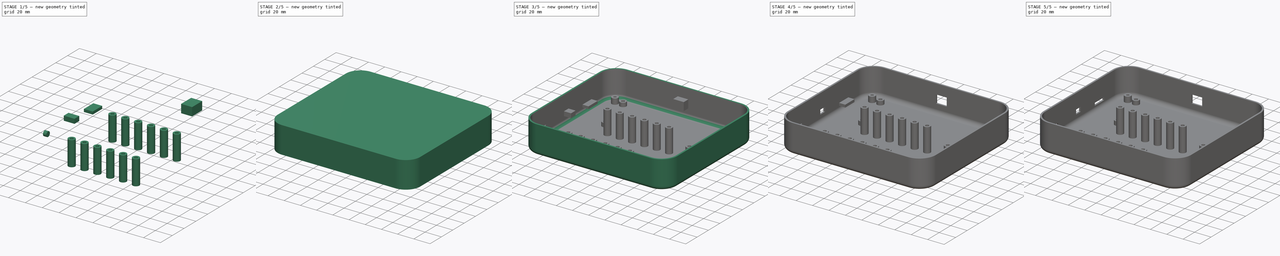
[diagram: build sequence overview — one tinted view per stage of 5, left to right]
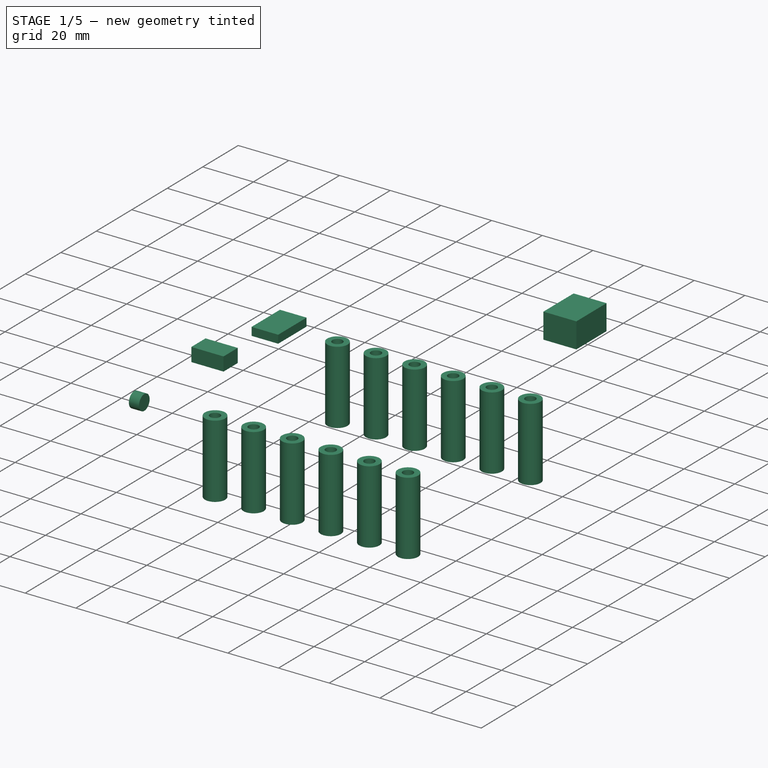
[diagram: stage 1 of 5 — iso view after this stage's code; geometry added in this stage tinted green]
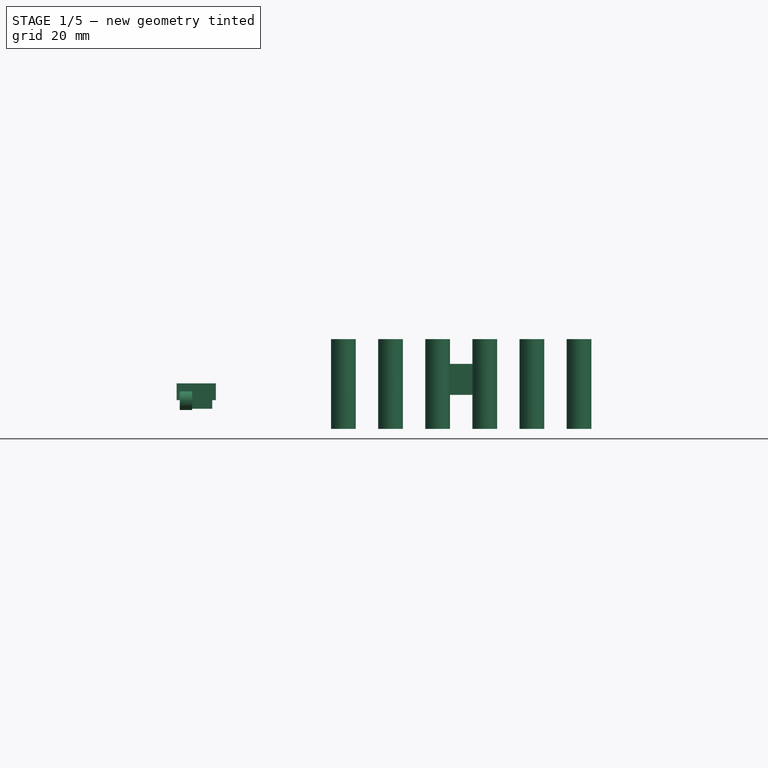
[diagram: stage 1 of 5 — front view after this stage's code; geometry added in this stage tinted green]
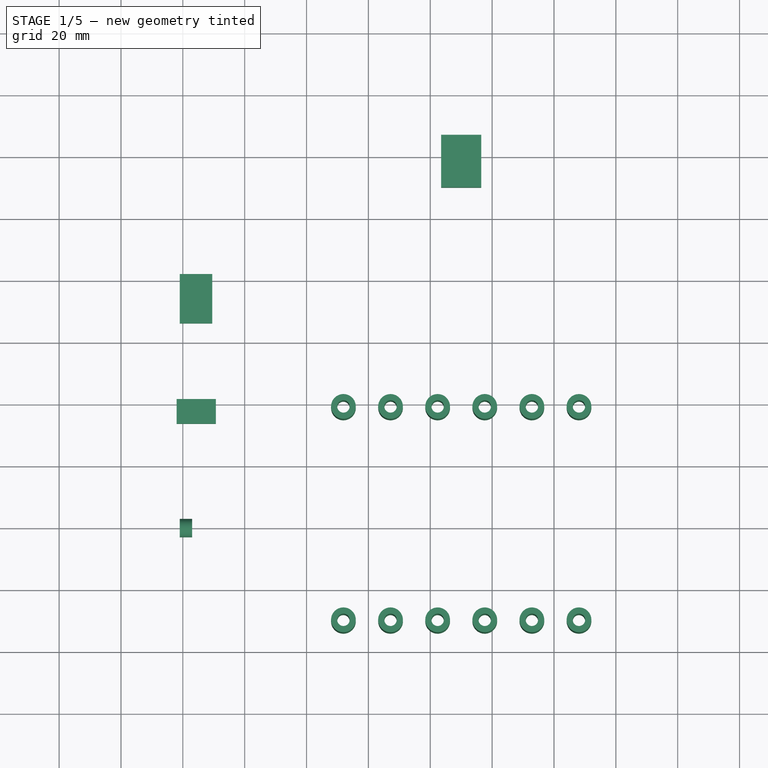
[diagram: stage 1 of 5 — top view after this stage's code; geometry added in this stage tinted green]
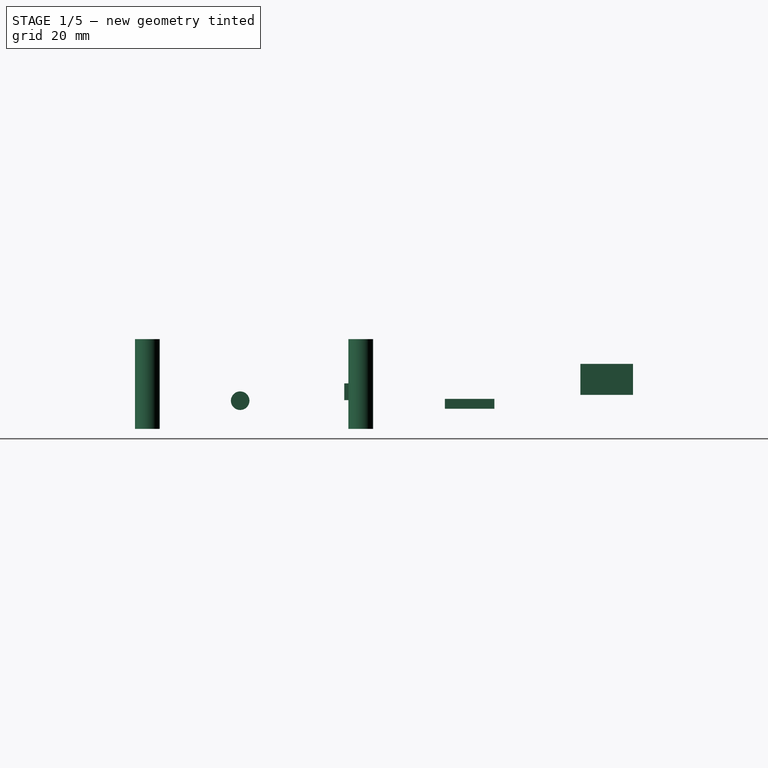
[diagram: stage 1 of 5 — right view after this stage's code; geometry added in this stage tinted green]
FCSTD DOCUMENT  (FreeCAD 0.16R6706 (Git))
Label: Case_Bottom_2.1
License: All rights reserved
LicenseURL: http://en.wikipedia.org/wiki/All_rights_reserved
objects: Sketcher::SketchObject×6, PartDesign::Pad×6, Part::Cut×6, PartDesign::Fillet×4, Part::Box×3, Part::Cylinder×2, PartDesign::Chamfer×1, Part::MultiFuse×1
note: 35 computed .brp shape members not serialized (recipe doc carries the construction recipe); baked Part::Feature solids carry a one-line shape summary decoded from their .brp

FEATURE [PartDesign::Pad] Pad004
  Length = 29
  Length2 = 100
  Placement = pos=(0,0,2) rot=(0,0,1;0rad)
  Sketch = -> Sketch004
  Type = 0
FEATURE [Part::Box] Box  label="USB"
  Height = 10
  Length = 13
  Placement = pos=(83.5,150,13) rot=(0,0,1;0rad)
  Width = 17
FEATURE [Part::Box] Box001  label="ON_OFF_SWITCH"
  Height = 5.4
  Length = 12.7
  Placement = pos=(-2,73.65,11.3) rot=(0,0,1;0rad)
  Width = 8
FEATURE [Part::Box] Box002  label="SD_Card"
  Height = 3.2
  Length = 10.5
  Placement = pos=(-1,106.17,8.5) rot=(0,0,1;0rad)
  Width = 16
FEATURE [Part::Cylinder] Cylinder001  label="AUDIOJACK"
  Angle = 360
  Height = 4
  Placement = pos=(-1,40,11.1) rot=(0,1,0;1.5708rad)
  Radius = 3
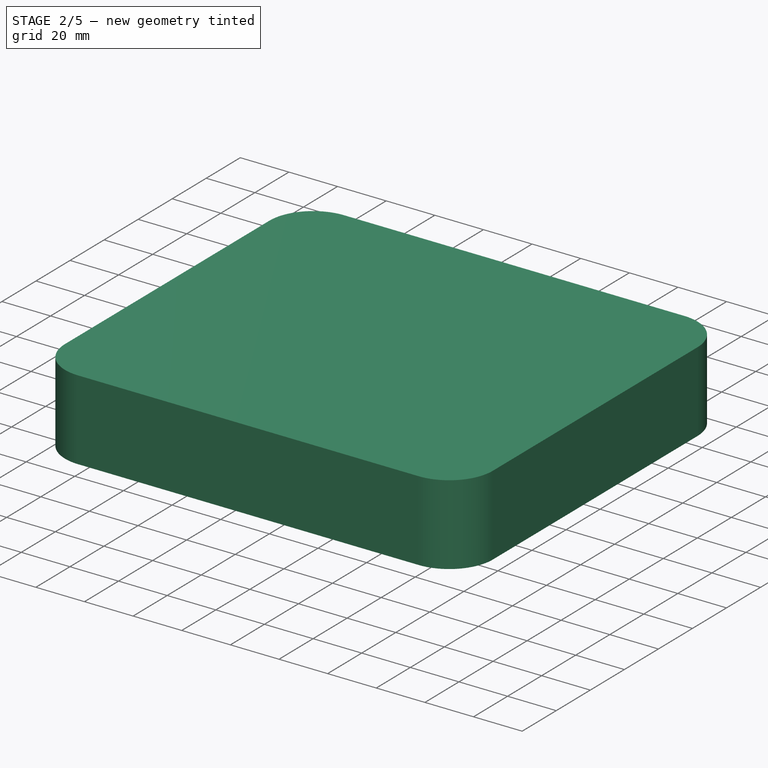
[diagram: stage 2 of 5 — iso view after this stage's code; geometry added in this stage tinted green]
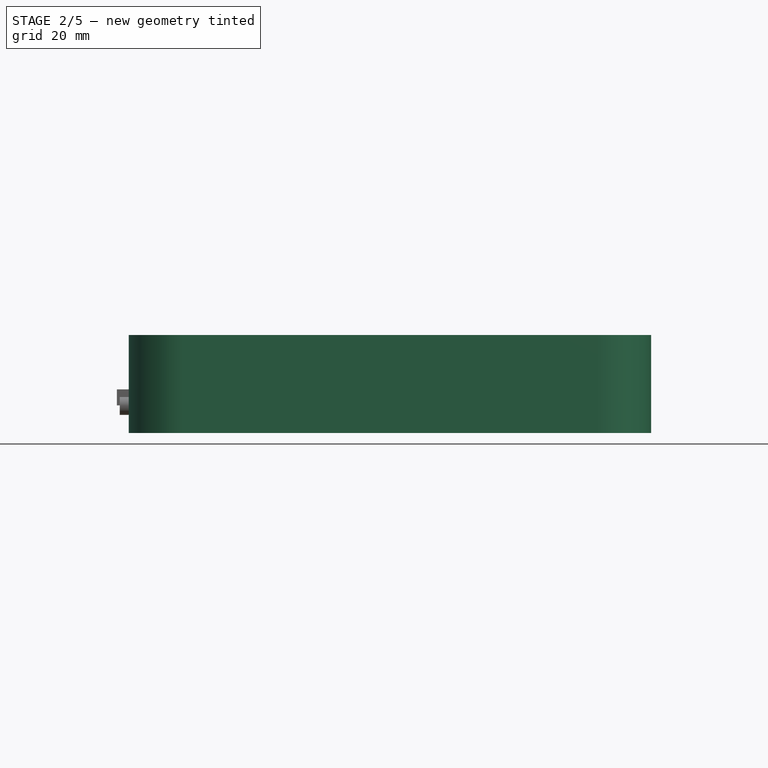
[diagram: stage 2 of 5 — front view after this stage's code; geometry added in this stage tinted green]
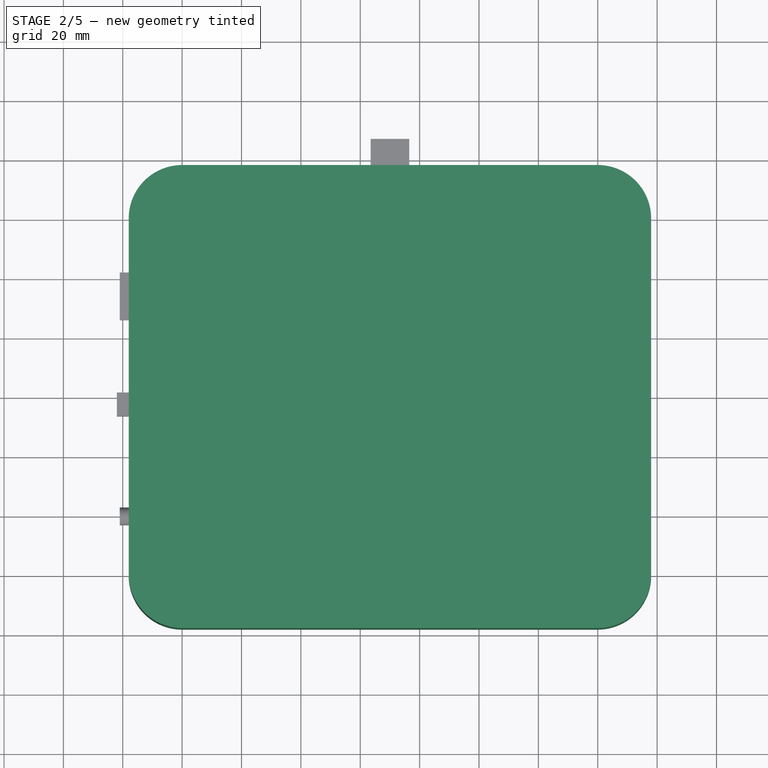
[diagram: stage 2 of 5 — top view after this stage's code; geometry added in this stage tinted green]
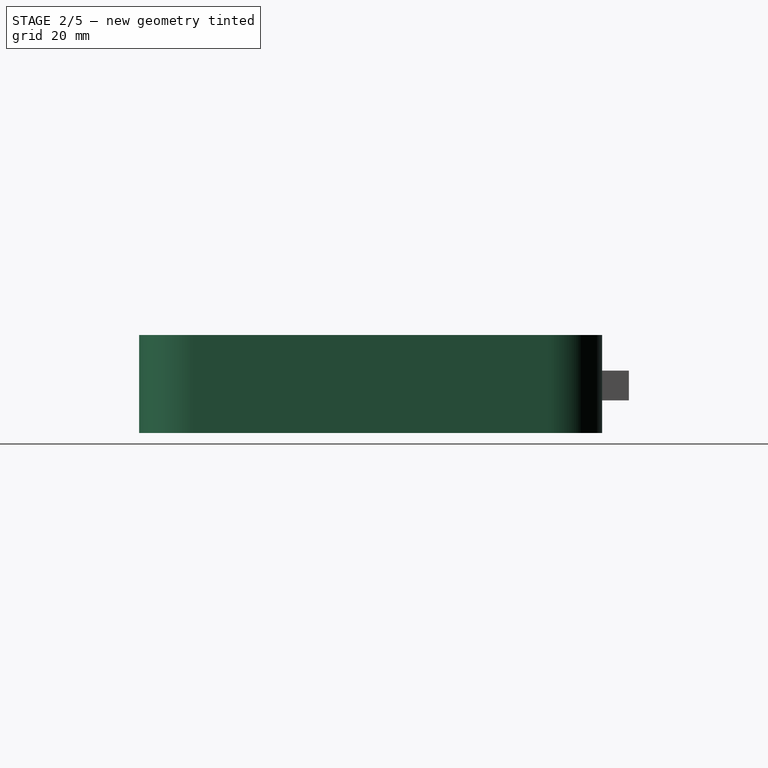
[diagram: stage 2 of 5 — right view after this stage's code; geometry added in this stage tinted green]
FEATURE [Sketcher::SketchObject] Sketch001
  Placement = pos=(0,0,2) rot=(0,0,1;0rad)
  sketch-geometry (4):
    g0: LineSegment StartX=2 StartY=2 StartZ=0 EndX=178 EndY=2 EndZ=0
    g1: LineSegment StartX=178 StartY=2 StartZ=0 EndX=178 EndY=158 EndZ=0
    g2: LineSegment StartX=178 StartY=158 StartZ=0 EndX=2 EndY=158 EndZ=0
    g3: LineSegment StartX=2 StartY=158 StartZ=0 EndX=2 EndY=2 EndZ=0
  constraints (12):
    c: Coincident(g0,g1)
    c: Coincident(g1,g2)
    c: Coincident(g2,g3)
    c: Coincident(g3,g0)
    c: Horizontal(g0)
    c: Horizontal(g2)
    c: Vertical(g1)
    c: Vertical(g3)
    c: DistanceX(g-1,g0) = 2
    c: DistanceY(g-1,g0) = 2
    c: DistanceX(g-1,g0) = 178
    c: DistanceY(g-1,g2) = 158
FEATURE [PartDesign::Pad] Pad001
  Length = 33
  Length2 = 100
  Placement = pos=(0,0,2) rot=(0,0,1;0rad)
  Sketch = -> Sketch001
  Type = 0
FEATURE [PartDesign::Fillet] Fillet002
  Base = -> Pad001 [Edge1,Edge8,Edge5,Edge2]
  Placement = pos=(0,0,2) rot=(0,0,1;0rad)
  Radius = 18
FEATURE [Sketcher::SketchObject] Sketch002
  Placement = pos=(0,0,2) rot=(0,0,1;0rad)
  sketch-geometry (8):
    g0: Circle CenterX=15 CenterY=15 CenterZ=0 NormalX=0 NormalY=0 NormalZ=1 Radius=4
    g1: Circle CenterX=15 CenterY=15 CenterZ=0 NormalX=0 NormalY=0 NormalZ=1 Radius=1.6
    g2: Circle CenterX=165 CenterY=15 CenterZ=0 NormalX=0 NormalY=0 NormalZ=1 Radius=4
    g3: Circle CenterX=165 CenterY=15 CenterZ=0 NormalX=0 NormalY=0 NormalZ=1 Radius=1.6
    g4: Circle CenterX=165 CenterY=145 CenterZ=0 NormalX=0 NormalY=0 NormalZ=1 Radius=4
    g5: Circle CenterX=165 CenterY=145 CenterZ=0 NormalX=0 NormalY=0 NormalZ=1 Radius=1.6
    g6: Circle CenterX=15 CenterY=145 CenterZ=0 NormalX=0 NormalY=0 NormalZ=1 Radius=4
    g7: Circle CenterX=15 CenterY=145 CenterZ=0 NormalX=0 NormalY=0 NormalZ=1 Radius=1.6
  constraints (20):
    c: Radius(g0) = 4
    c: DistanceX(g-1,g0) = 15
    c: DistanceY(g-1,g0) = 15
    c: Coincident(g1,g0)
    c: Radius(g1) = 1.6
    c: Radius(g2) = 4
    c: DistanceX(g-1,g2) = 165
    c: DistanceY(g-1,g2) = 15
    c: Coincident(g3,g2)
    c: Radius(g3) = 1.6
    c: Radius(g4) = 4
    c: DistanceX(g-1,g4) = 165
    c: DistanceY(g-1,g4) = 145
    c: Coincident(g5,g4)
    c: Radius(g5) = 1.6
    c: Radius(g6) = 4
    c: DistanceY(g-1,g6) = 145
    c: DistanceX(g-1,g6) = 15
    c: Coincident(g7,g6)
    c: Radius(g7) = 1.6
FEATURE [PartDesign::Pad] Pad002
  Length = 7
  Length2 = 100
  Placement = pos=(0,0,2) rot=(0,0,1;0rad)
  Sketch = -> Sketch002
  Type = 0
FEATURE [Sketcher::SketchObject] Sketch003
  Placement = pos=(0,0,2) rot=(0,0,1;0rad)
  sketch-geometry (12):
    g0: Circle CenterX=25 CenterY=145 CenterZ=0 NormalX=0 NormalY=0 NormalZ=1 Radius=4
    g1: Circle CenterX=25 CenterY=145 CenterZ=0 NormalX=0 NormalY=0 NormalZ=1 Radius=2
    g2: Circle CenterX=155 CenterY=145 CenterZ=0 NormalX=0 NormalY=0 NormalZ=1 Radius=4
    g3: Circle CenterX=155 CenterY=145 CenterZ=0 NormalX=0 NormalY=0 NormalZ=1 Radius=2
    g4: Circle CenterX=38 CenterY=95 CenterZ=0 NormalX=0 NormalY=0 NormalZ=1 Radius=4
    g5: Circle CenterX=142 CenterY=95 CenterZ=0 NormalX=0 NormalY=0 NormalZ=1 Radius=4
    g6: Circle CenterX=142 CenterY=95 CenterZ=0 NormalX=0 NormalY=0 NormalZ=1 Radius=2
    g7: Circle CenterX=38 CenterY=95 CenterZ=0 NormalX=0 NormalY=0 NormalZ=1 Radius=2
    g8: Circle CenterX=25 CenterY=15 CenterZ=0 NormalX=0 NormalY=0 NormalZ=1 Radius=4
    g9: Circle CenterX=155 CenterY=15 CenterZ=0 NormalX=0 NormalY=0 NormalZ=1 Radius=4
    g10: Circle CenterX=25 CenterY=15 CenterZ=0 NormalX=0 NormalY=0 NormalZ=1 Radius=2
    g11: Circle CenterX=155 CenterY=15 CenterZ=0 NormalX=0 NormalY=0 NormalZ=1 Radius=2
  constraints (30):
    c: DistanceX(g-1,g0) = 25
    c: DistanceY(g-1,g0) = 145
    c: Radius(g0) = 4
    c: Coincident(g1,g0)
    c: Radius(g1) = 2
    c: Radius(g2) = 4
    c: DistanceX(g-1,g2) = 155
    c: DistanceY(g-1,g2) = 145
    c: Coincident(g3,g2)
    c: Radius(g3) = 2
    c: Radius(g5) = 4
    c: Coincident(g6,g5)
    c: Radius(g6) = 2
    c: DistanceY(g5,g2) = 50
    c: Radius(g4) = 4
    c: Coincident(g7,g4)
    c: Radius(g7) = 2
    c: DistanceY(g4,g0) = 50
    c: DistanceX(g-1,g4) = 38
    c: DistanceX(g-1,g5) = 142
    c: Radius(g8) = 4
    c: DistanceX(g-1,g8) = 25
    c: DistanceY(g-1,g8) = 15
    c: Radius(g9) = 4
    c: DistanceY(g-1,g9) = 15
    c: DistanceX(g-1,g9) = 155
    c: Coincident(g10,g8)
    c: Radius(g10) = 2
    c: Coincident(g11,g9)
    c: Radius(g11) = 2
FEATURE [Sketcher::SketchObject] Sketch004
  Placement = pos=(0,0,2) rot=(0,0,1;0rad)
  sketch-geometry (24):
    g0: Circle CenterX=51.92 CenterY=10 CenterZ=0 NormalX=0 NormalY=0 NormalZ=1 Radius=4
    g1: Circle CenterX=67.152 CenterY=10 CenterZ=0 NormalX=0 NormalY=0 NormalZ=1 Radius=4
    g2: Circle CenterX=82.384 CenterY=10 CenterZ=0 NormalX=0 NormalY=0 NormalZ=1 Radius=4
    g3: Circle CenterX=97.616 CenterY=10 CenterZ=0 NormalX=0 NormalY=0 NormalZ=1 Radius=4
    g4: Circle CenterX=112.848 CenterY=10 CenterZ=0 NormalX=0 NormalY=0 NormalZ=1 Radius=4
    g5: Circle CenterX=128.08 CenterY=10 CenterZ=0 NormalX=0 NormalY=0 NormalZ=1 Radius=4
    g6: Circle CenterX=51.92 CenterY=10 CenterZ=0 NormalX=0 NormalY=0 NormalZ=1 Radius=2
    g7: Circle CenterX=67.152 CenterY=10 CenterZ=0 NormalX=0 NormalY=0 NormalZ=1 Radius=2
    g8: Circle CenterX=82.384 CenterY=10 CenterZ=0 NormalX=0 NormalY=0 NormalZ=1 Radius=2
    g9: Circle CenterX=97.616 CenterY=10 CenterZ=0 NormalX=0 NormalY=0 NormalZ=1 Radius=2
    g10: Circle CenterX=112.848 CenterY=10 CenterZ=0 NormalX=0 NormalY=0 NormalZ=1 Radius=2
    g11: Circle CenterX=128.08 CenterY=10 CenterZ=0 NormalX=0 NormalY=0 NormalZ=1 Radius=2
    g12: Circle CenterX=51.92 CenterY=79 CenterZ=0 NormalX=0 NormalY=0 NormalZ=1 Radius=4
    g13: Circle CenterX=67.152 CenterY=79 CenterZ=0 NormalX=0 NormalY=0 NormalZ=1 Radius=4
    g14: Circle CenterX=82.384 CenterY=79 CenterZ=0 NormalX=0 NormalY=0 NormalZ=1 Radius=4
    g15: Circle CenterX=97.616 CenterY=79 CenterZ=0 NormalX=0 NormalY=0 NormalZ=1 Radius=4
    g16: Circle CenterX=112.848 CenterY=79 CenterZ=0 NormalX=0 NormalY=0 NormalZ=1 Radius=4
    g17: Circle CenterX=128.08 CenterY=79 CenterZ=0 NormalX=0 NormalY=0 NormalZ=1 Radius=4
    g18: Circle CenterX=51.92 CenterY=79 CenterZ=0 NormalX=0 NormalY=0 NormalZ=1 Radius=2
    g19: Circle CenterX=67.152 CenterY=79 CenterZ=0 NormalX=0 NormalY=0 NormalZ=1 Radius=2
    g20: Circle CenterX=82.384 CenterY=79 CenterZ=0 NormalX=0 NormalY=0 NormalZ=1 Radius=2
    g21: Circle CenterX=97.616 CenterY=79 CenterZ=0 NormalX=0 NormalY=0 NormalZ=1 Radius=2
    g22: Circle CenterX=112.848 CenterY=79 CenterZ=0 NormalX=0 NormalY=0 NormalZ=1 Radius=2
    g23: Circle CenterX=128.08 CenterY=79 CenterZ=0 NormalX=0 NormalY=0 NormalZ=1 Radius=2
  constraints (60):
    c: Radius(g0) = 4
    c: DistanceX(g-1,g0) = 51.92
    c: DistanceX(g0,g1) = 15.232
    c: DistanceX(g1,g2) = 15.232
    c: DistanceX(g2,g3) = 15.232
    c: DistanceX(g3,g4) = 15.232
    c: DistanceX(g4,g5) = 15.232
    c: Radius(g1) = 4
    c: Radius(g2) = 4
    c: Radius(g3) = 4
    c: Radius(g4) = 4
    c: Radius(g5) = 4
    c: DistanceY(g1,g2) = 0
    c: DistanceY(g2,g3) = 0
    c: DistanceY(g4,g3) = 0
    c: DistanceY(g5,g4) = 0
    c: DistanceY(g0,g1) = 0
    c: Coincident(g6,g0)
    c: Coincident(g7,g1)
    c: Coincident(g8,g2)
    c: Coincident(g9,g3)
    c: Coincident(g10,g4)
    c: Coincident(g11,g5)
    c: Radius(g11) = 2
    c: Radius(g10) = 2
    c: Radius(g9) = 2
    c: Radius(g8) = 2
    c: Radius(g7) = 2
    c: Radius(g6) = 2
    c: Radius(g17) = 4
    c: Radius(g16) = 4
    c: Radius(g15) = 4
    c: Radius(g14) = 4
    c: Radius(g13) = 4
    c: Radius(g12) = 4
    c: DistanceY(g12,g13) = 0
    c: DistanceY(g13,g14) = 0
    c: DistanceY(g14,g15) = 0
    c: DistanceY(g15,g16) = 0
    c: DistanceY(g16,g17) = 0
    c: DistanceX(g12,g13) = 15.232
    c: DistanceX(g13,g14) = 15.232
    c: DistanceX(g14,g15) = 15.232
    c: DistanceX(g15,g16) = 15.232
    c: DistanceX(g16,g17) = 15.232
    c: DistanceX(g-1,g12) = 51.92
    c: DistanceY(g-1,g0) = 10
    c: Coincident(g18,g12)
    c: Coincident(g19,g13)
    c: Coincident(g20,g14)
    c: Coincident(g21,g15)
    c: Coincident(g22,g16)
    c: Coincident(g23,g17)
    c: Radius(g23) = 2
    c: Radius(g22) = 2
    c: Radius(g21) = 2
    c: Radius(g20) = 2
    c: Radius(g19) = 2
    c: Radius(g18) = 2
    c: DistanceY(g0,g12) = 69
FEATURE [PartDesign::Pad] Pad003
  Length = 5
  Length2 = 100
  Placement = pos=(0,0,2) rot=(0,0,1;0rad)
  Sketch = -> Sketch003
  Type = 0
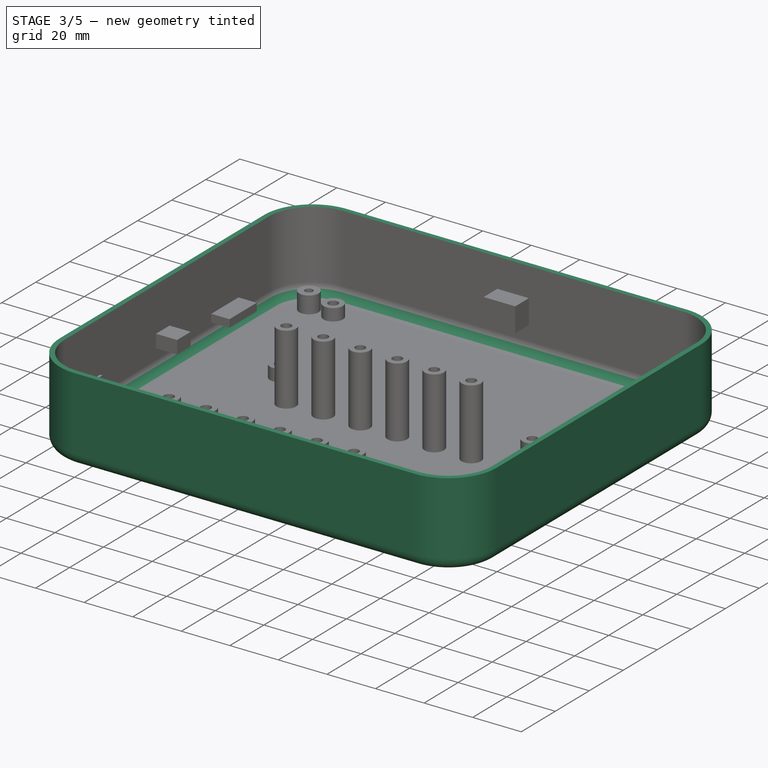
[diagram: stage 3 of 5 — iso view after this stage's code; geometry added in this stage tinted green]
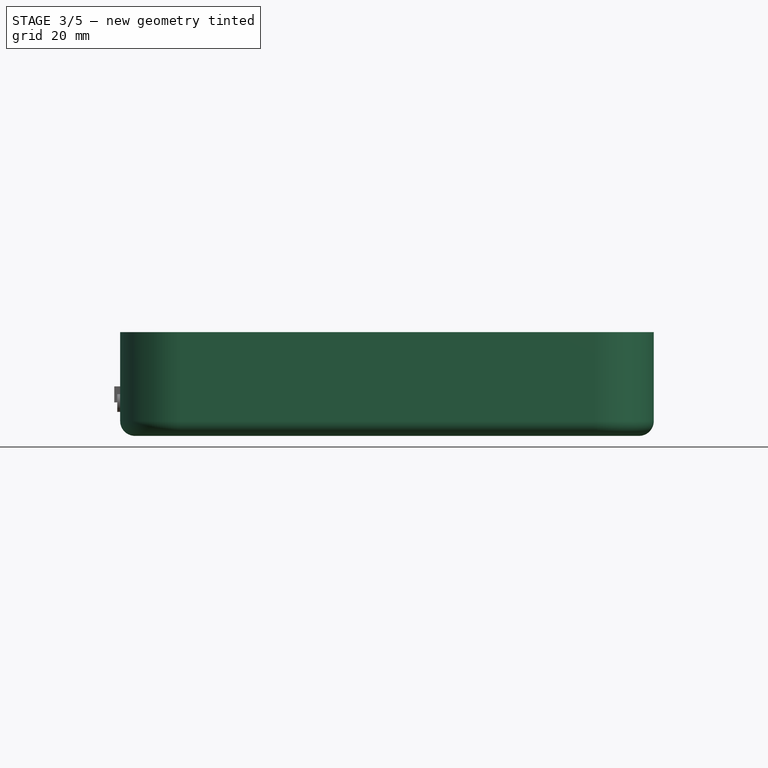
[diagram: stage 3 of 5 — front view after this stage's code; geometry added in this stage tinted green]
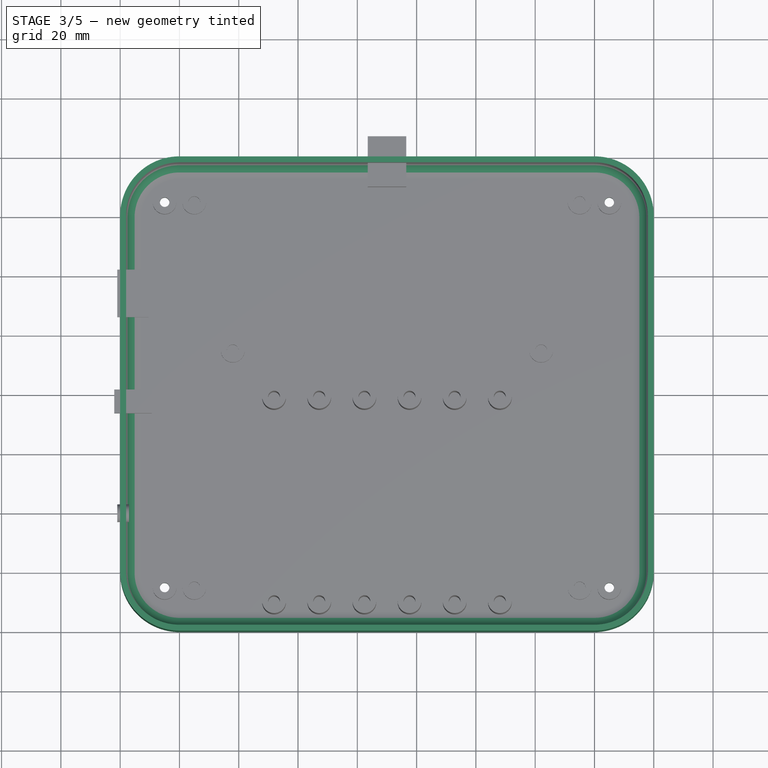
[diagram: stage 3 of 5 — top view after this stage's code; geometry added in this stage tinted green]
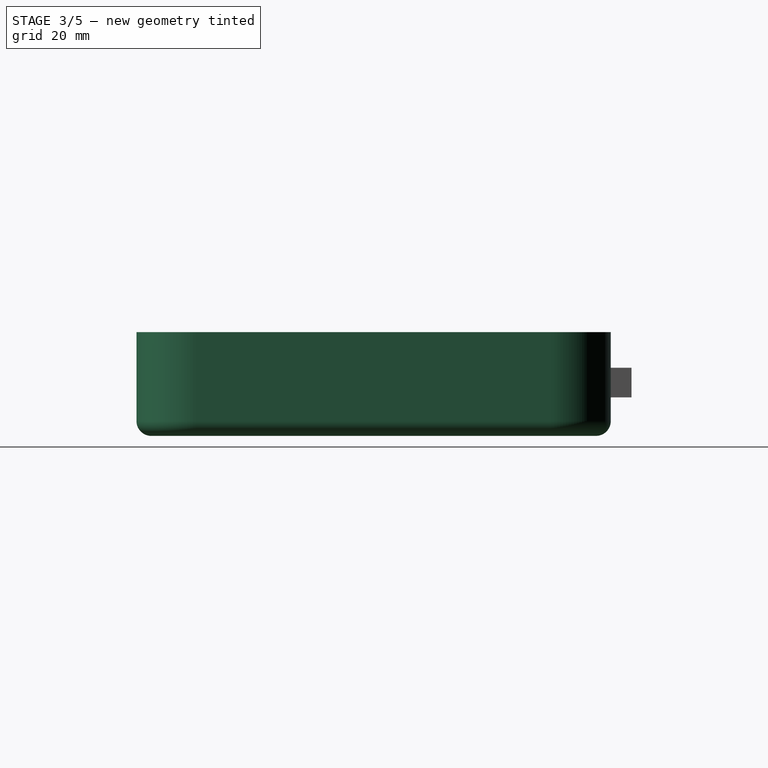
[diagram: stage 3 of 5 — right view after this stage's code; geometry added in this stage tinted green]
FEATURE [Sketcher::SketchObject] Sketch
  sketch-geometry (8):
    g0: LineSegment StartX=0 StartY=0 StartZ=0 EndX=180 EndY=0 EndZ=0
    g1: LineSegment StartX=180 StartY=0 StartZ=0 EndX=180 EndY=160 EndZ=0
    g2: LineSegment StartX=180 StartY=160 StartZ=0 EndX=0 EndY=160 EndZ=0
    g3: LineSegment StartX=0 StartY=160 StartZ=0 EndX=0 EndY=0 EndZ=0
    g4: Circle CenterX=15 CenterY=145 CenterZ=0 NormalX=0 NormalY=0 NormalZ=1 Radius=1.6
    g5: Circle CenterX=15 CenterY=15 CenterZ=0 NormalX=0 NormalY=0 NormalZ=1 Radius=1.6
    g6: Circle CenterX=165 CenterY=15 CenterZ=0 NormalX=0 NormalY=0 NormalZ=1 Radius=1.6
    g7: Circle CenterX=165 CenterY=145 CenterZ=0 NormalX=0 NormalY=0 NormalZ=1 Radius=1.6
  constraints (23):
    c: Coincident(g0,g1)
    c: Coincident(g1,g2)
    c: Coincident(g2,g3)
    c: Coincident(g3,g0)
    c: Horizontal(g0)
    c: Horizontal(g2)
    c: Vertical(g1)
    c: Vertical(g3)
    c: Coincident(g0,g-1)
    c: DistanceX(g-1,g0) = 180
    c: DistanceY(g-1,g2) = 160
    c: Radius(g4) = 1.6
    c: DistanceY(g-1,g4) = 145
    c: DistanceX(g-1,g4) = 15
    c: Radius(g7) = 1.6
    c: Radius(g6) = 1.6
    c: Radius(g5) = 1.6
    c: DistanceX(g-1,g5) = 15
    c: DistanceY(g-1,g5) = 15
    c: DistanceY(g-1,g6) = 15
    c: DistanceX(g-1,g6) = 165
    c: DistanceX(g-1,g7) = 165
    c: DistanceY(g-1,g7) = 145
FEATURE [PartDesign::Pad] Pad
  Length = 35
  Length2 = 100
  Sketch = -> Sketch
  Type = 0
FEATURE [PartDesign::Fillet] Fillet
  Base = -> Pad [Edge1,Edge2,Edge5,Edge8]
  Radius = 20
FEATURE [PartDesign::Fillet] Fillet001
  Base = -> Fillet [Edge1,Edge5,Edge7,Edge9,Edge11,Edge10,Edge8,Edge6]
  Radius = 5
FEATURE [PartDesign::Fillet] Fillet003
  Base = -> Fillet002 [Edge5,Edge1,Edge7,Edge9,Edge11,Edge10,Edge8,Edge6]
  Placement = pos=(0,0,2) rot=(0,0,1;0rad)
  Radius = 5
FEATURE [Part::Cut] Cut
  Base = -> Fillet001
  Tool = -> Fillet003
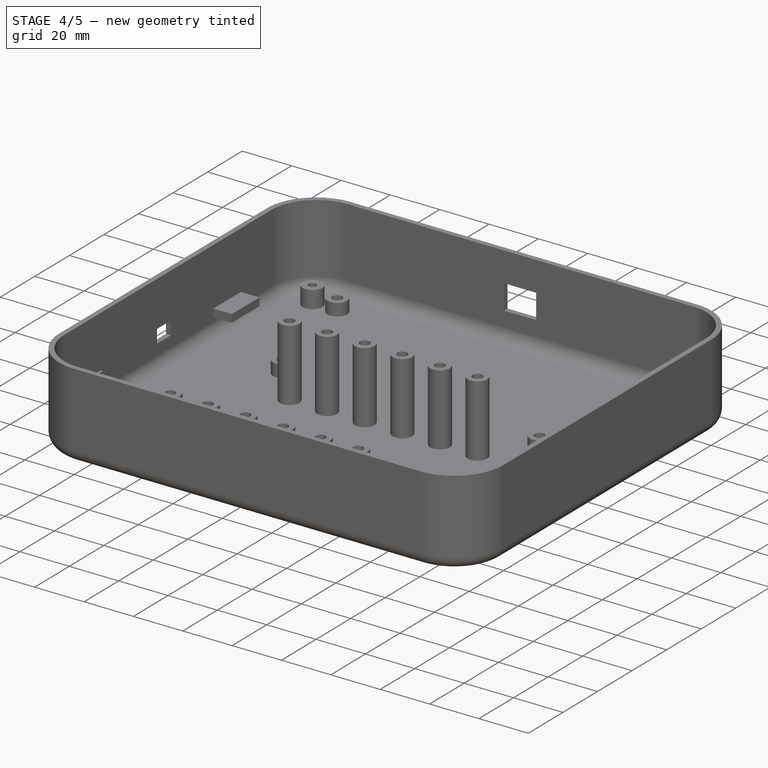
[diagram: stage 4 of 5 — iso view after this stage's code; geometry added in this stage tinted green]
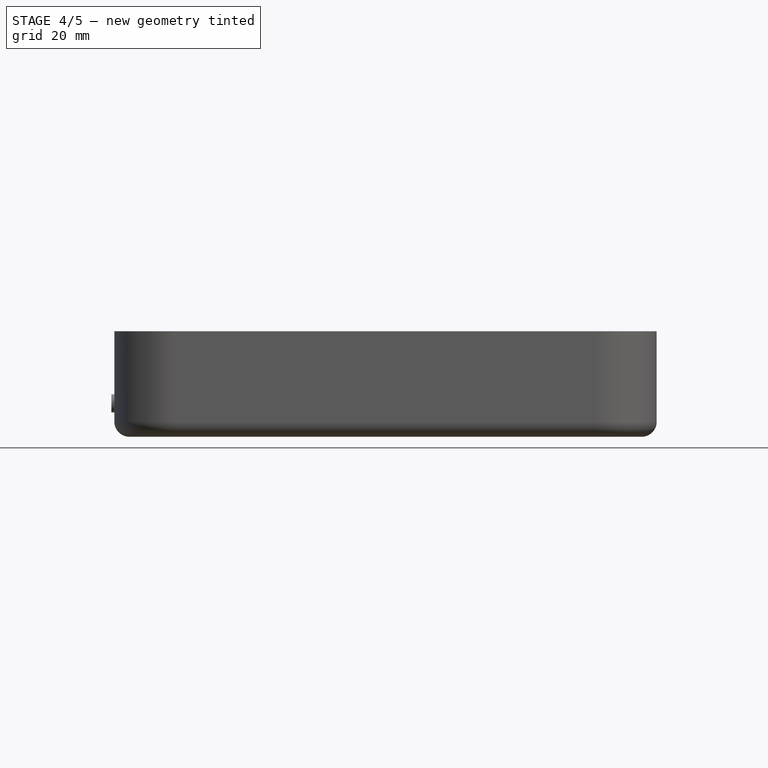
[diagram: stage 4 of 5 — front view after this stage's code; geometry added in this stage tinted green]
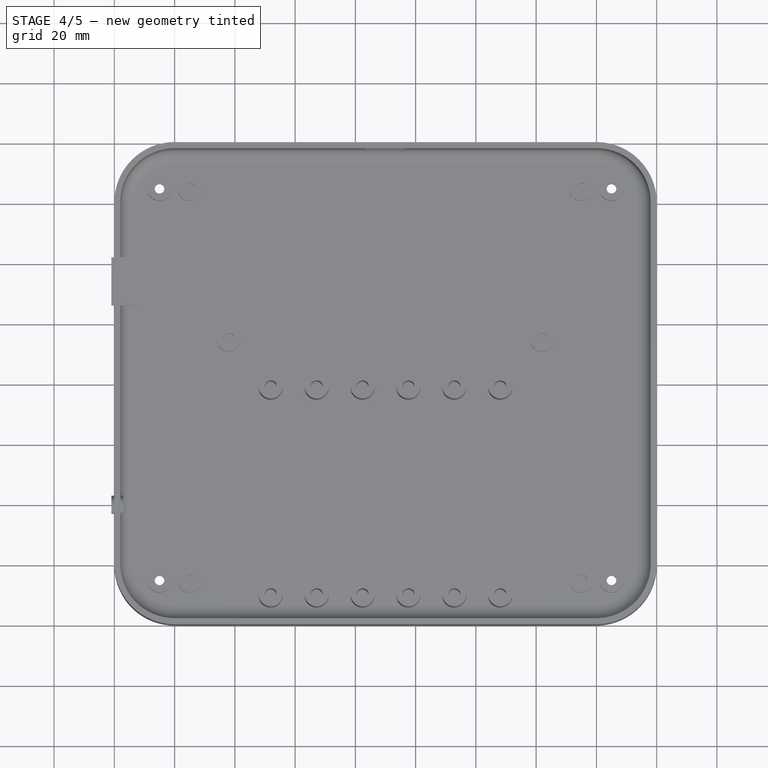
[diagram: stage 4 of 5 — top view after this stage's code; geometry added in this stage tinted green]
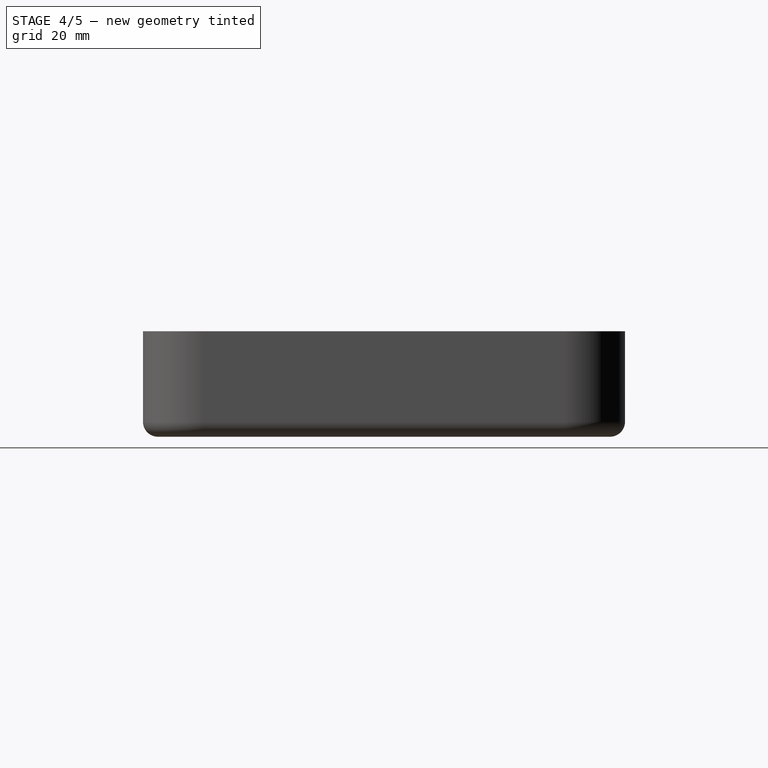
[diagram: stage 4 of 5 — right view after this stage's code; geometry added in this stage tinted green]
FEATURE [PartDesign::Chamfer] Chamfer
  Base = -> Cut [Edge37,Edge38,Edge40,Edge39]
  Size = 1.65
FEATURE [Part::MultiFuse] Fusion
  Shapes = -> [Pad004,Pad003,Pad002,Chamfer]
FEATURE [Part::Cut] Cut001
  Base = -> Fusion
  Tool = -> Box
FEATURE [Part::Cut] Cut003
  Base = -> Cut001
  Tool = -> Box001
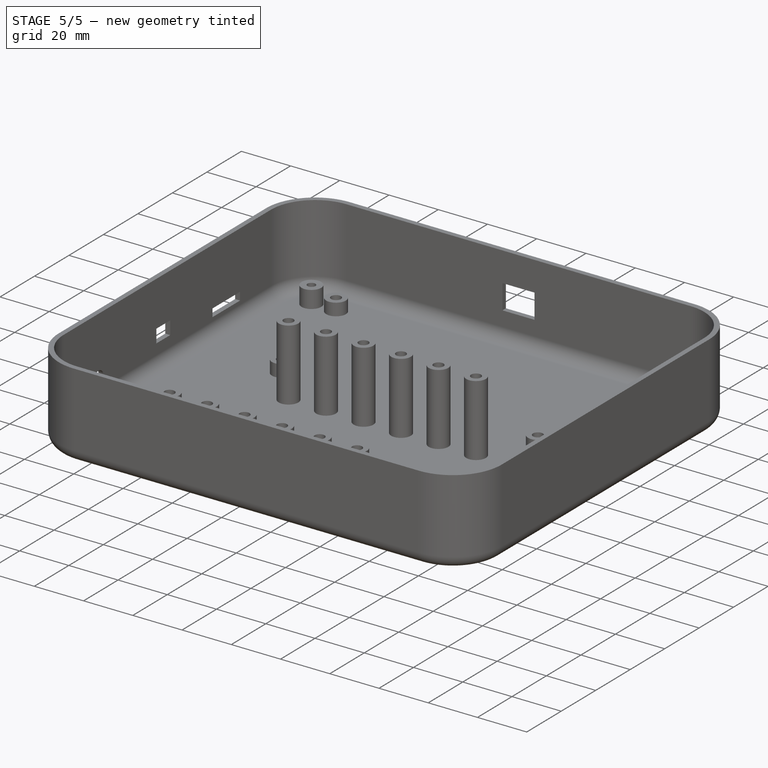
[diagram: stage 5 of 5 — iso view after this stage's code; geometry added in this stage tinted green]
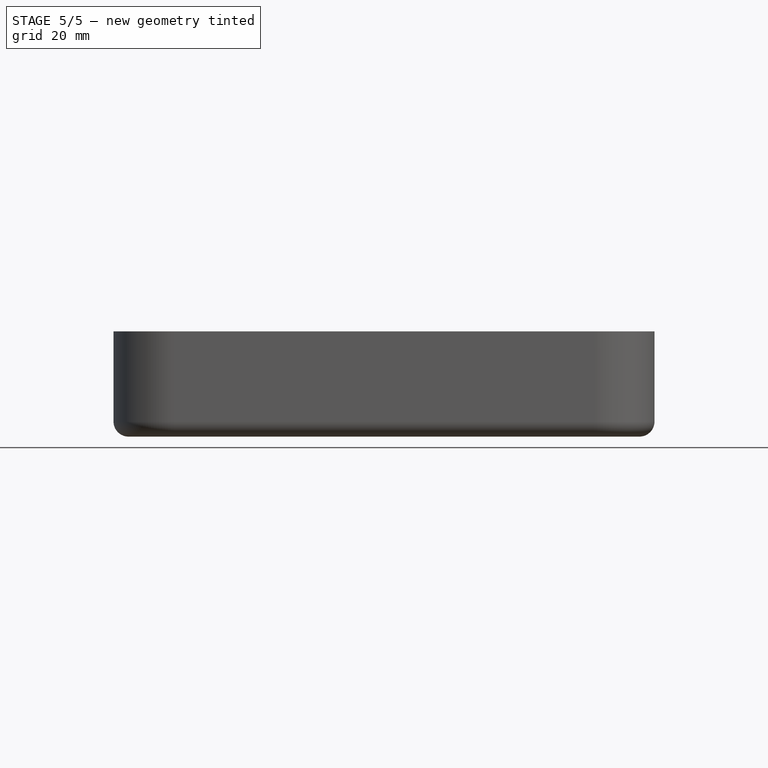
[diagram: stage 5 of 5 — front view after this stage's code; geometry added in this stage tinted green]
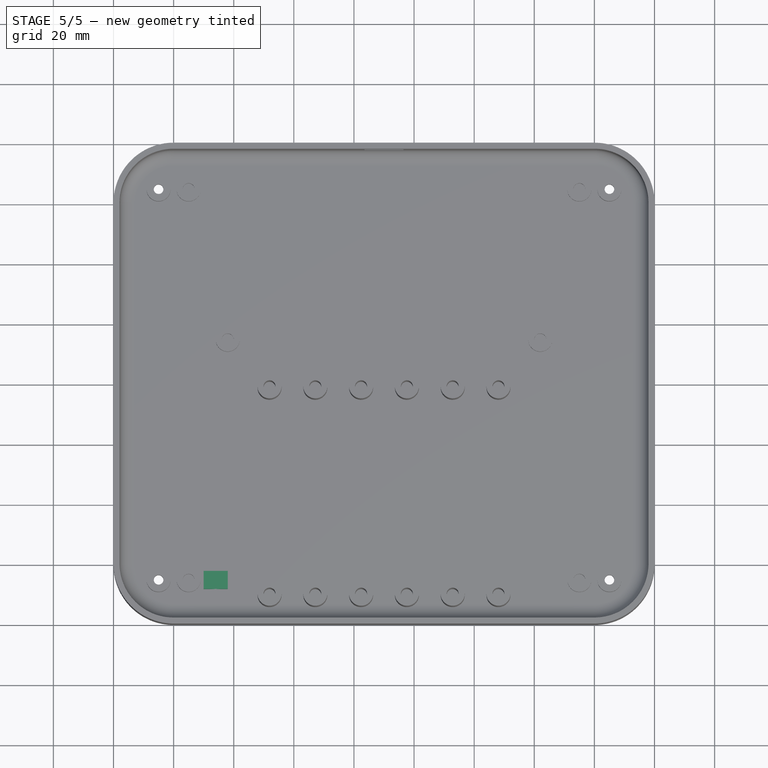
[diagram: stage 5 of 5 — top view after this stage's code; geometry added in this stage tinted green]
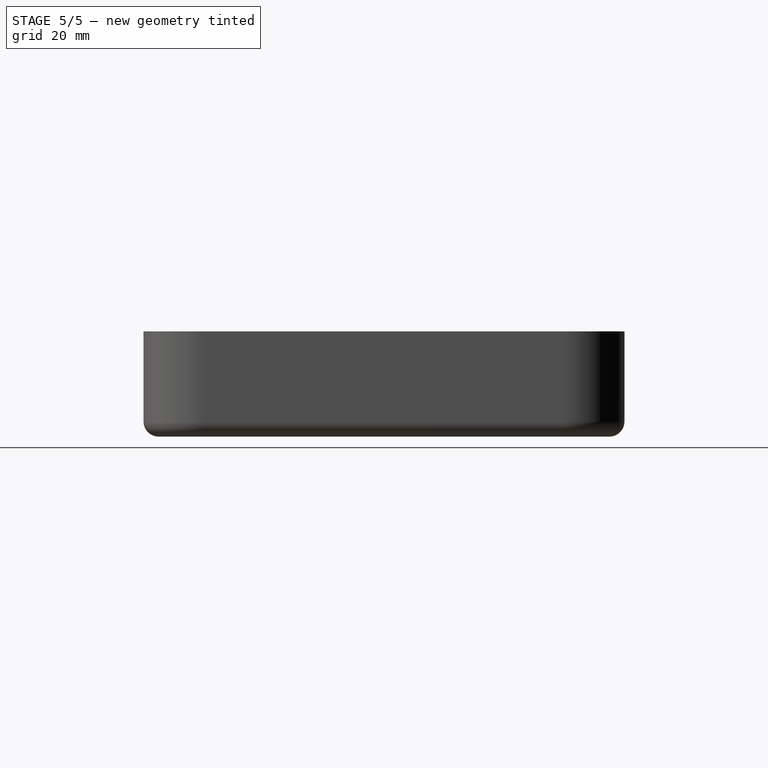
[diagram: stage 5 of 5 — right view after this stage's code; geometry added in this stage tinted green]
FEATURE [Sketcher::SketchObject] Sketch005
  Placement = pos=(0,0,2) rot=(0,0,1;0rad)
  sketch-geometry (4):
    g0: LineSegment StartX=30 StartY=18 StartZ=0 EndX=38 EndY=18 EndZ=0
    g1: LineSegment StartX=38 StartY=18 StartZ=0 EndX=38 EndY=12 EndZ=0
    g2: LineSegment StartX=38 StartY=12 StartZ=0 EndX=30 EndY=12 EndZ=0
    g3: LineSegment StartX=30 StartY=12 StartZ=0 EndX=30 EndY=18 EndZ=0
  constraints (12):
    c: Coincident(g0,g1)
    c: Coincident(g1,g2)
    c: Coincident(g2,g3)
    c: Coincident(g3,g0)
    c: Horizontal(g0)
    c: Horizontal(g2)
    c: Vertical(g1)
    c: Vertical(g3)
    c: DistanceX(g0,g0) = 8
    c: DistanceY(g2,g0) = 6
    c: DistanceX(g-1,g2) = 30
    c: DistanceY(g-1,g2) = 12
FEATURE [PartDesign::Pad] Pad005
  Length = 5
  Length2 = 100
  Placement = pos=(0,0,2) rot=(0,0,1;0rad)
  Sketch = -> Sketch005
  Type = 0
FEATURE [Part::Cylinder] Cylinder  label="Zylinder"
  Angle = 360
  Height = 8
  Placement = pos=(34,19,4.5) rot=(1,0,0;1.5708rad)
  Radius = 2.05
FEATURE [Part::Cut] Cut002  label="VibrationMotor"
  Base = -> Pad005
  Tool = -> Cylinder
FEATURE [Part::Cut] Cut004
  Base = -> Cut003
  Tool = -> Box002
FEATURE [Part::Cut] Cut005
  Base = -> Cut004
  Tool = -> Cylinder001
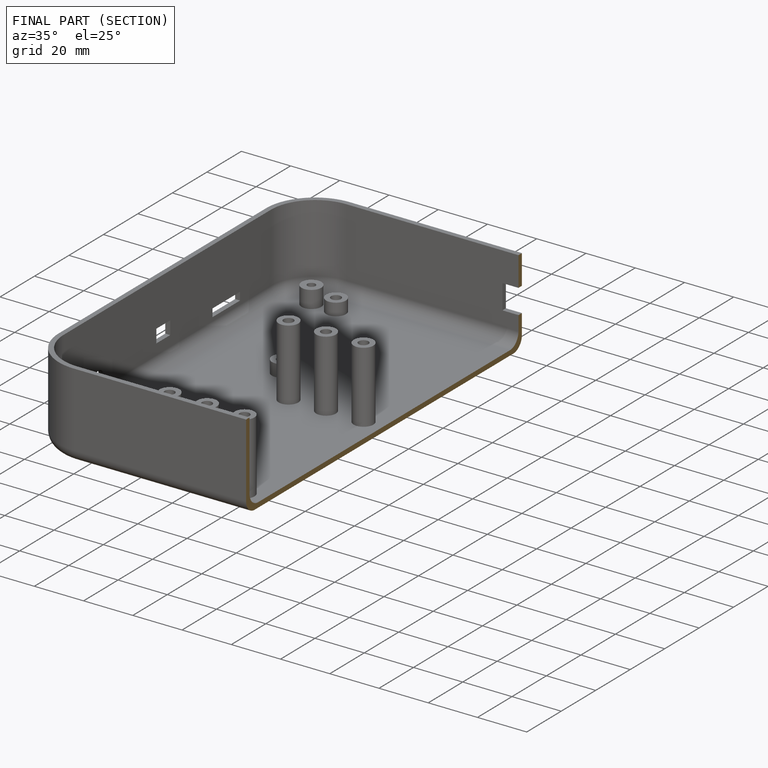
[diagram: finished part — half-section view (interior)]
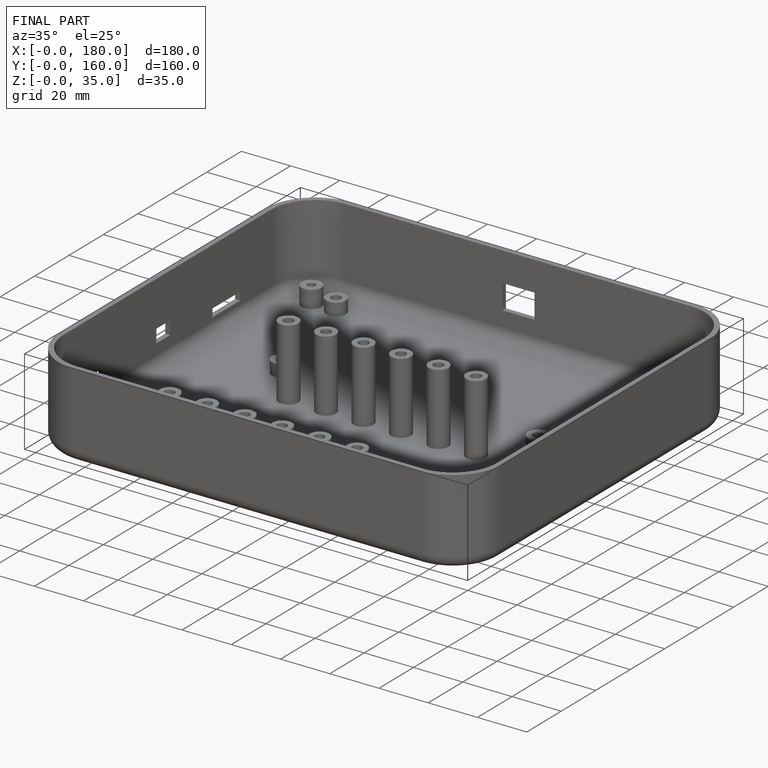
[diagram: finished part — iso view with bounding-box wireframe]
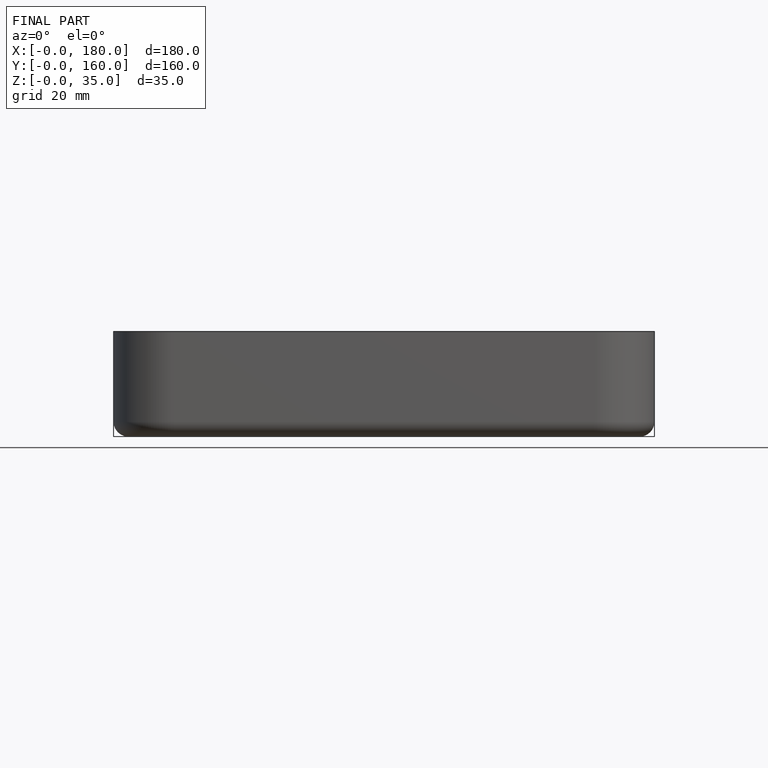
[diagram: finished part — front view with bounding-box wireframe]
